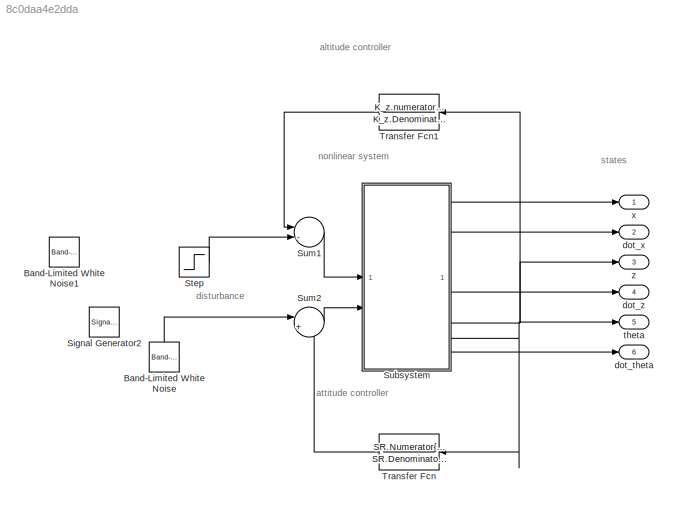
MODEL slx_8c0daa4e2dda
KIND model
CONFIG AbsTol = auto
CONFIG EnableMultiTasking = off
CONFIG FixedStep = auto
CONFIG MaxStep = auto
CONFIG MinStep = auto
CONFIG RelTol = 1e-3
CONFIG SampleTimeConstraint = Unconstrained
CONFIG SolverName = VariableStepAuto
CONFIG StartTime = 0.0
CONFIG StopTime = 10.0
BLOCK [Reference] Band-Limited White Noise  REF=simulink/Sources/Band-Limited
White Noise
  NameLocation = right
  SourceBlock = simulink/Sources/Band-Limited\nWhite Noise
  SourceType = Band-Limited White Noise.
BLOCK [Reference] Band-Limited White Noise1  REF=simulink/Sources/Band-Limited
White Noise
  Commented = on
  SourceBlock = simulink/Sources/Band-Limited\nWhite Noise
  SourceType = Band-Limited White Noise.
BLOCK [SignalGenerator] Signal Generator2
  Amplitude = 1e-6
  Commented = on
  Units = rad/sec
  WaveForm = square
BLOCK [Step] Step
  After = 7e6
  Before = 0.05*7e6
  SampleTime = 0
  Time = t_on
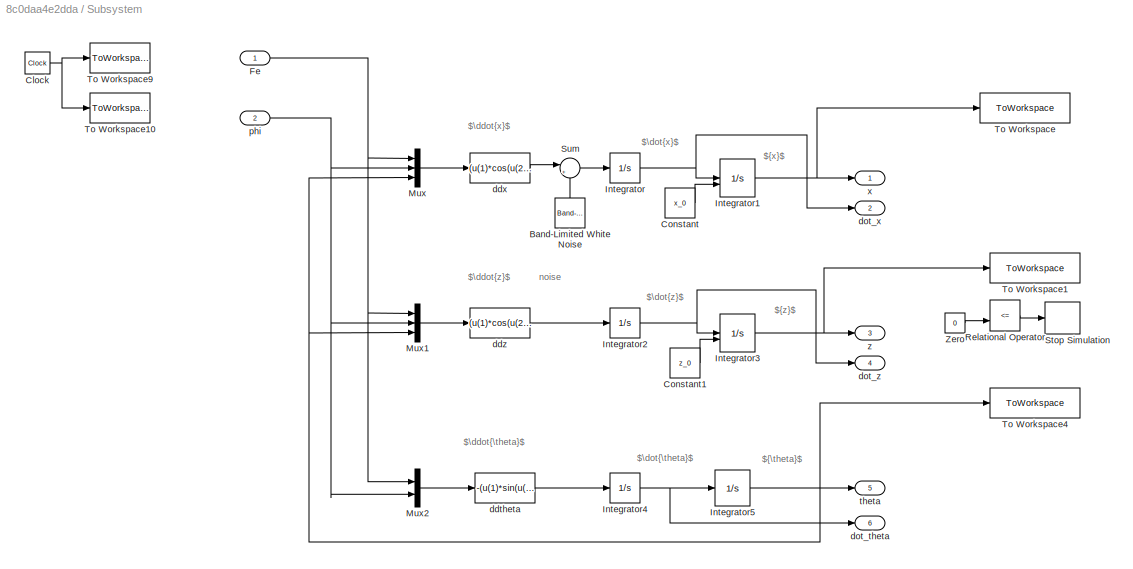
BLOCK [SubSystem] Subsystem
BLOCK [Reference] Subsystem/Band-Limited White Noise  REF=simulink/Sources/Band-Limited
White Noise
  NameLocation = right
  SourceBlock = simulink/Sources/Band-Limited\nWhite Noise
  SourceType = Band-Limited White Noise.
BLOCK [Clock] Subsystem/Clock
BLOCK [Constant] Subsystem/Constant
  SampleTime = Ts
  Value = x_0
BLOCK [Constant] Subsystem/Constant1
  SampleTime = Ts
  Value = z_0
BLOCK [Inport] Subsystem/Fe
BLOCK [Integrator] Subsystem/Integrator
  ContinuousStateAttributes = 'x_dot'
BLOCK [Integrator] Subsystem/Integrator1
  ContinuousStateAttributes = 'x'
  InitialConditionSource = external
BLOCK [Integrator] Subsystem/Integrator2
  ContinuousStateAttributes = 'z_dot'
BLOCK [Integrator] Subsystem/Integrator3
  ContinuousStateAttributes = 'z'
  InitialCondition = 50
  InitialConditionSource = external
  LimitOutput = on
  LowerSaturationLimit = 0
BLOCK [Integrator] Subsystem/Integrator4
  ContinuousStateAttributes = 'theta_dot'
BLOCK [Integrator] Subsystem/Integrator5
BLOCK [Mux] Subsystem/Mux
  DisplayOption = bar
  Inputs = 3
BLOCK [Mux] Subsystem/Mux1
  DisplayOption = bar
  Inputs = 3
BLOCK [Mux] Subsystem/Mux2
  DisplayOption = bar
  Inputs = 2
BLOCK [RelationalOperator] Subsystem/Relational Operator
  Commented = on
  InputSameDT = off
  Operator = <=
  OutDataTypeStr = boolean
BLOCK [Stop] Subsystem/Stop Simulation
  Commented = on
BLOCK [Sum] Subsystem/Sum
  Inputs = |++
  NameLocation = top
BLOCK [ToWorkspace] Subsystem/To Workspace
  FixptAsFi = on
  MaxDataPoints = inf
  SampleTime = Ts
  VariableName = x
BLOCK [ToWorkspace] Subsystem/To Workspace1
  FixptAsFi = on
  MaxDataPoints = inf
  SampleTime = Ts
  VariableName = z
BLOCK [ToWorkspace] Subsystem/To Workspace10
  FixptAsFi = on
  MaxDataPoints = inf
  SampleTime = Ts
  VariableName = ts
BLOCK [ToWorkspace] Subsystem/To Workspace4
  FixptAsFi = on
  MaxDataPoints = inf
  SampleTime = Ts
  VariableName = theta
BLOCK [ToWorkspace] Subsystem/To Workspace9
  FixptAsFi = on
  MaxDataPoints = inf
  SampleTime = -1
  VariableName = t
BLOCK [Constant] Subsystem/Zero
  Commented = on
  OutDataTypeStr = Inherit: Inherit via back propagation
  Value = 0
BLOCK [Fcn] Subsystem/ddtheta
  Expr = -(u(1)*sin(u(2))*(60+1*cos(u(2))))/J_T
BLOCK [Fcn] Subsystem/ddx
  Expr = (u(1)*cos(u(2))*sin(u(3))+u(1)*cos(u(3))*sin(u(2)))/m
BLOCK [Fcn] Subsystem/ddz
  Expr = (u(1)*cos(u(2))*cos(u(3))-u(1)*sin(u(2))*sin(u(3))-m*g)/m
BLOCK [Outport] Subsystem/dot_theta 
  Port = 6
BLOCK [Outport] Subsystem/dot_x
  Port = 2
BLOCK [Outport] Subsystem/dot_z 
  Port = 4
BLOCK [Inport] Subsystem/phi
  Port = 2
BLOCK [Outport] Subsystem/theta
  Port = 5
BLOCK [Outport] Subsystem/x
BLOCK [Outport] Subsystem/z
  Port = 3
BLOCK [Sum] Sum1
  Inputs = |-+
  NameLocation = top
BLOCK [Sum] Sum2
  Inputs = |+-
BLOCK [TransferFcn] Transfer Fcn
  Denominator = SR.Denominator{1}
  Numerator = SR.Numerator{1}
BLOCK [TransferFcn] Transfer Fcn1
  Denominator = K_z.Denominator{1}
  Numerator = K_z.numerator{1}
BLOCK [Outport] dot_theta 
  Port = 6
BLOCK [Outport] dot_x 
  Port = 2
BLOCK [Outport] dot_z
  Port = 4
BLOCK [Outport] theta
  Port = 5
BLOCK [Outport] x
BLOCK [Outport] z
  Port = 3
ANNOTATION (root): disturbance
ANNOTATION (root): altitude controller
ANNOTATION (root): attitude controller
ANNOTATION (root): nonlinear system
ANNOTATION (root): states
ANNOTATION Subsystem: noise
ANNOTATION Subsystem: $\ddot{\theta}$
ANNOTATION Subsystem: $\ddot{x}$
ANNOTATION Subsystem: $\ddot{z}$
ANNOTATION Subsystem: $\dot{\theta}$
ANNOTATION Subsystem: $\dot{x}$
ANNOTATION Subsystem: $\dot{z}$
ANNOTATION Subsystem: ${\theta}$
ANNOTATION Subsystem: ${x}$
ANNOTATION Subsystem: ${z}$
LINE Band-Limited White Noise:1 -> Sum2:1
LINE Step:1 -> Sum1:2
LINE Subsystem/Band-Limited White Noise:1 -> Subsystem/Sum:2
NET Subsystem/Clock:1 -> Subsystem/To Workspace10:1, Subsystem/To Workspace9:1
LINE Subsystem/Constant1:1 -> Subsystem/Integrator3:2
LINE Subsystem/Constant:1 -> Subsystem/Integrator1:2
NET Subsystem/Fe:1 -> Subsystem/Mux1:1, Subsystem/Mux2:1, Subsystem/Mux:1
NET Subsystem/Integrator1:1 -> Subsystem/To Workspace:1, Subsystem/x:1
NET Subsystem/Integrator2:1 -> Subsystem/Integrator3:1, Subsystem/dot_z :1
NET Subsystem/Integrator3:1 -> Subsystem/To Workspace1:1, Subsystem/z:1
NET Subsystem/Integrator4:1 -> Subsystem/Integrator5:1, Subsystem/dot_theta :1
NET Subsystem/Integrator5:1 -> Subsystem/Mux1:3, Subsystem/Mux:3, Subsystem/To Workspace4:1, Subsystem/theta:1
NET Subsystem/Integrator:1 -> Subsystem/Integrator1:1, Subsystem/dot_x:1
LINE Subsystem/Mux1:1 -> Subsystem/ddz:1
LINE Subsystem/Mux2:1 -> Subsystem/ddtheta:1
LINE Subsystem/Mux:1 -> Subsystem/ddx:1
LINE Subsystem/Relational Operator:1 -> Subsystem/Stop Simulation:1
LINE Subsystem/Sum:1 -> Subsystem/Integrator:1
LINE Subsystem/Zero:1 -> Subsystem/Relational Operator:2
LINE Subsystem/ddtheta:1 -> Subsystem/Integrator4:1
LINE Subsystem/ddx:1 -> Subsystem/Sum:1
LINE Subsystem/ddz:1 -> Subsystem/Integrator2:1
NET Subsystem/phi:1 -> Subsystem/Mux1:2, Subsystem/Mux2:2, Subsystem/Mux:2
LINE Subsystem:1 -> x:1
LINE Subsystem:2 -> dot_x :1
NET Subsystem:3 -> Transfer Fcn1:1, z:1
LINE Subsystem:4 -> dot_z:1
NET Subsystem:5 -> Transfer Fcn:1, theta:1
LINE Subsystem:6 -> dot_theta :1
LINE Sum1:1 -> Subsystem:1
LINE Sum2:1 -> Subsystem:2
LINE Transfer Fcn1:1 -> Sum1:1
LINE Transfer Fcn:1 -> Sum2:2
note: NET lines group one-source signal fan-out (src -> all destinations, sorted); 1:1 wires keep LINE
